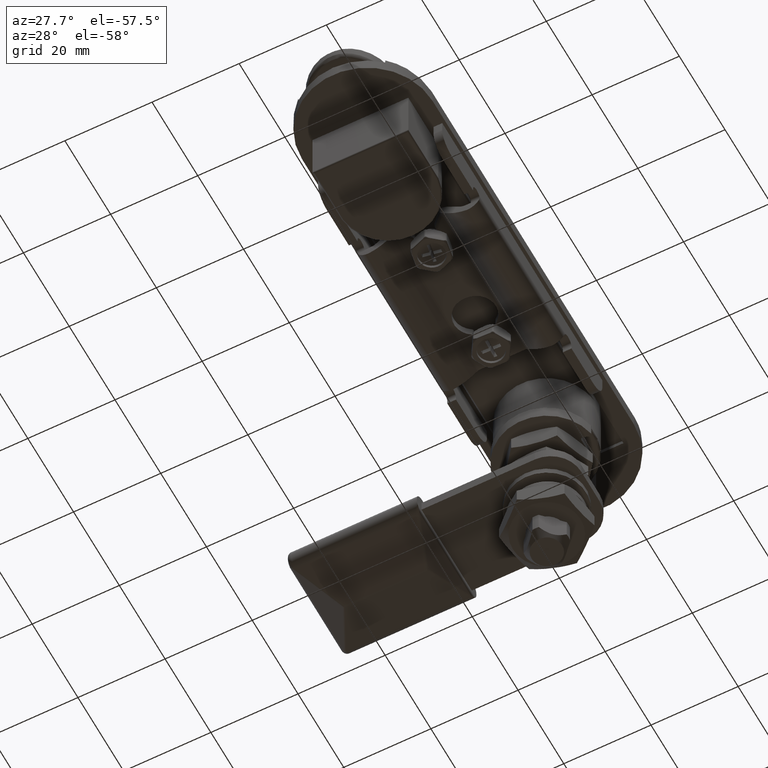
[diagram: clean part render]
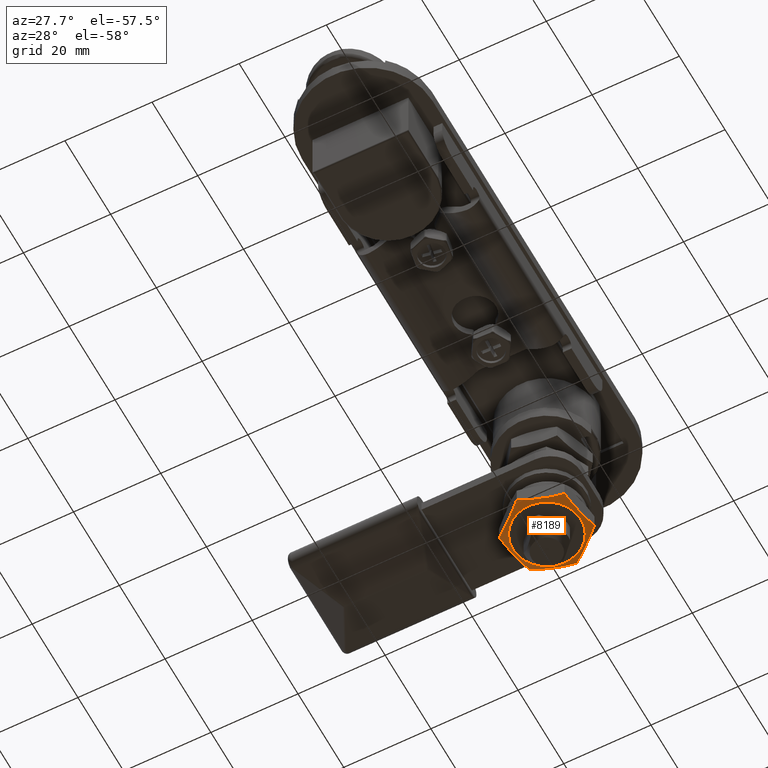
[diagram: same view with one face highlighted and labeled with its STEP entity id]
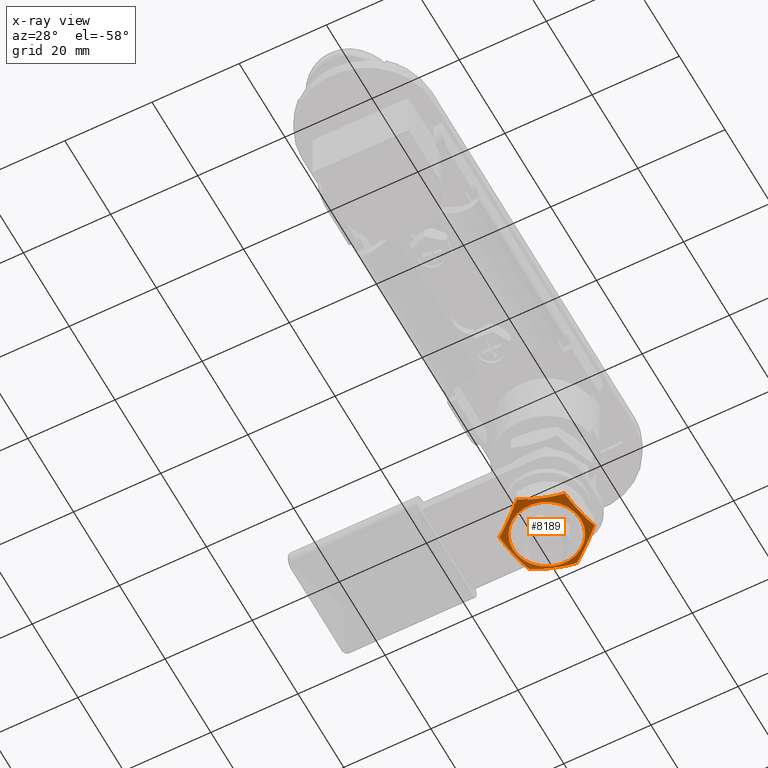
[diagram: x-ray of the same camera — body ghosted, the highlighted face saturated]
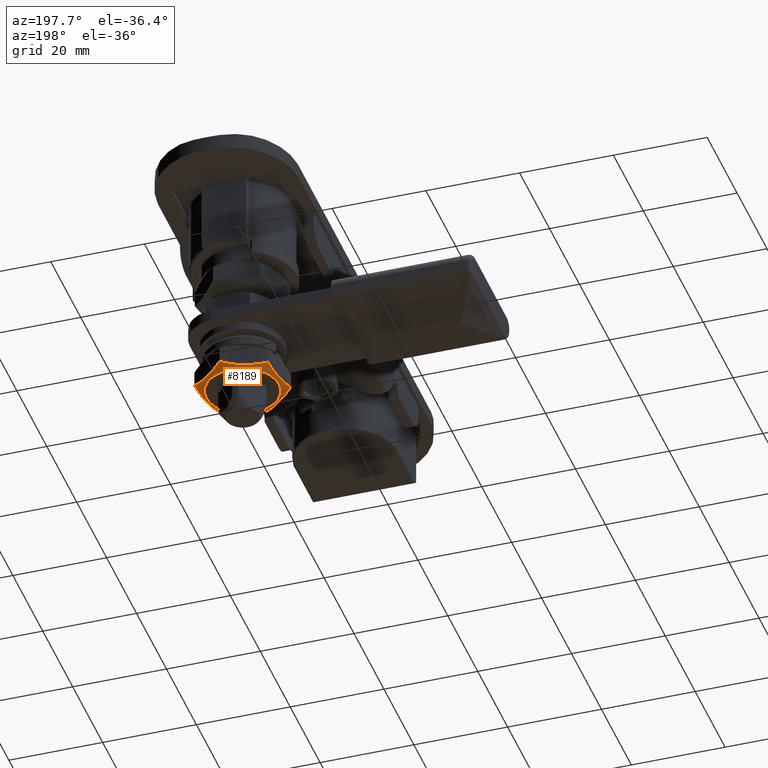
[diagram: same view with one face highlighted and labeled with its STEP entity id]
A machine part, auxiliary view. The second image highlights one B-rep face of the part: STEP entity #8189.
The next image is the same camera in x-ray: the body ghosted, the highlighted face saturated — about 0% of this face is hidden behind the body in this view.
A second angle (auxiliary view) of the same face is appended — the face is thin or edge-on in the first view.
In plain terms, the highlighted conical surface has half-angle 60.206 deg.
Its self-contained STEP definition (entity closure, byte-faithful):
#68=CONICAL_SURFACE('',#9004,8.80000000000001,60.2061946531972);
#153=(
BOUNDED_CURVE()
B_SPLINE_CURVE(2,(#14298,#14299,#14300),.UNSPECIFIED.,.F.,.F.)
B_SPLINE_CURVE_WITH_KNOTS((3,3),(0.,0.991466016069996),.UNSPECIFIED.)
CURVE()
GEOMETRIC_REPRESENTATION_ITEM()
RATIONAL_B_SPLINE_CURVE((1.,1.15470053837925,1.))
REPRESENTATION_ITEM('')
);
#155=(
BOUNDED_CURVE()
B_SPLINE_CURVE(2,(#14309,#14310,#14311),.UNSPECIFIED.,.F.,.F.)
B_SPLINE_CURVE_WITH_KNOTS((3,3),(0.,0.991466016069996),.UNSPECIFIED.)
CURVE()
GEOMETRIC_REPRESENTATION_ITEM()
RATIONAL_B_SPLINE_CURVE((1.,1.15470053837925,1.))
REPRESENTATION_ITEM('')
);
#157=(
BOUNDED_CURVE()
B_SPLINE_CURVE(2,(#14319,#14320,#14321),.UNSPECIFIED.,.F.,.F.)
B_SPLINE_CURVE_WITH_KNOTS((3,3),(0.,0.991466016069997),.UNSPECIFIED.)
CURVE()
GEOMETRIC_REPRESENTATION_ITEM()
RATIONAL_B_SPLINE_CURVE((1.,1.15470053837925,1.))
REPRESENTATION_ITEM('')
);
#159=(
BOUNDED_CURVE()
B_SPLINE_CURVE(2,(#14328,#14329,#14330),.UNSPECIFIED.,.F.,.F.)
B_SPLINE_CURVE_WITH_KNOTS((3,3),(0.,0.991466016069996),.UNSPECIFIED.)
CURVE()
GEOMETRIC_REPRESENTATION_ITEM()
RATIONAL_B_SPLINE_CURVE((1.,1.15470053837925,1.))
REPRESENTATION_ITEM('')
);
#161=(
BOUNDED_CURVE()
B_SPLINE_CURVE(2,(#14338,#14339,#14340),.UNSPECIFIED.,.F.,.F.)
B_SPLINE_CURVE_WITH_KNOTS((3,3),(0.,0.991466016069997),.UNSPECIFIED.)
CURVE()
GEOMETRIC_REPRESENTATION_ITEM()
RATIONAL_B_SPLINE_CURVE((1.,1.15470053837925,1.))
REPRESENTATION_ITEM('')
);
#163=(
BOUNDED_CURVE()
B_SPLINE_CURVE(2,(#14346,#14347,#14348),.UNSPECIFIED.,.F.,.F.)
B_SPLINE_CURVE_WITH_KNOTS((3,3),(0.,0.991466016069996),.UNSPECIFIED.)
CURVE()
GEOMETRIC_REPRESENTATION_ITEM()
RATIONAL_B_SPLINE_CURVE((1.,1.15470053837925,1.))
REPRESENTATION_ITEM('')
);
#1885=FACE_BOUND('',#2819,.T.);
#2268=FACE_OUTER_BOUND('',#2818,.T.);
#2818=EDGE_LOOP('',(#7081,#7082,#7083,#7084,#7085,#7086));
#2819=EDGE_LOOP('',(#7087));
#3251=CIRCLE('',#9005,7.8);
#3937=VERTEX_POINT('',#14295);
#3938=VERTEX_POINT('',#14297);
#3940=VERTEX_POINT('',#14307);
#3942=VERTEX_POINT('',#14317);
#3944=VERTEX_POINT('',#14327);
#3946=VERTEX_POINT('',#14337);
#3947=VERTEX_POINT('',#14350);
#5001=EDGE_CURVE('',#3937,#3938,#153,.T.);
#5005=EDGE_CURVE('',#3940,#3937,#155,.T.);
#5008=EDGE_CURVE('',#3942,#3940,#157,.T.);
#5010=EDGE_CURVE('',#3938,#3944,#159,.T.);
#5013=EDGE_CURVE('',#3944,#3946,#161,.T.);
#5016=EDGE_CURVE('',#3946,#3942,#163,.T.);
#5017=EDGE_CURVE('',#3947,#3947,#3251,.T.);
#7081=ORIENTED_EDGE('',*,*,#5016,.F.);
#7082=ORIENTED_EDGE('',*,*,#5013,.F.);
#7083=ORIENTED_EDGE('',*,*,#5010,.F.);
#7084=ORIENTED_EDGE('',*,*,#5001,.F.);
#7085=ORIENTED_EDGE('',*,*,#5005,.F.);
#7086=ORIENTED_EDGE('',*,*,#5008,.F.);
#7087=ORIENTED_EDGE('',*,*,#5017,.T.);
#8189=ADVANCED_FACE('',(#2268,#1885),#68,.T.);
#9004=AXIS2_PLACEMENT_3D('',#14349,#11063,#11064);
#9005=AXIS2_PLACEMENT_3D('',#14351,#11065,#11066);
#11063=DIRECTION('center_axis',(0.,-1.,0.));
#11064=DIRECTION('ref_axis',(1.,0.,0.));
#11065=DIRECTION('center_axis',(0.,-1.,0.));
#11066=DIRECTION('ref_axis',(1.,0.,0.));
#14295=CARTESIAN_POINT('',(2.88761423330246E-17,1.65487633949666,9.80000000000001));
#14297=CARTESIAN_POINT('',(-8.4870489570875,1.65487633949666,4.9));
#14298=CARTESIAN_POINT('Ctrl Pts',(1.23638473196892E-15,1.65487633949666,
9.80000000000001));
#14299=CARTESIAN_POINT('Ctrl Pts',(-4.24352447854375,3.05765282361325,7.35));
#14300=CARTESIAN_POINT('Ctrl Pts',(-8.48704895708751,1.65487633949666,4.9));
#14307=CARTESIAN_POINT('',(8.4870489570875,1.65487633949666,4.9));
#14309=CARTESIAN_POINT('Ctrl Pts',(8.48704895708751,1.65487633949666,4.9));
#14310=CARTESIAN_POINT('Ctrl Pts',(4.24352447854375,3.05765282361325,7.35000000000001));
#14311=CARTESIAN_POINT('Ctrl Pts',(-3.70915419590677E-15,1.65487633949666,
9.80000000000001));
#14317=CARTESIAN_POINT('',(8.4870489570875,1.65487633949666,-4.9));
#14319=CARTESIAN_POINT('Ctrl Pts',(8.4870489570875,1.65487633949666,-4.90000000000001));
#14320=CARTESIAN_POINT('Ctrl Pts',(8.4870489570875,3.05765282361325,1.4978585575802E-15));
#14321=CARTESIAN_POINT('Ctrl Pts',(8.4870489570875,1.65487633949666,4.90000000000001));
#14327=CARTESIAN_POINT('',(-8.4870489570875,1.65487633949666,-4.9));
#14328=CARTESIAN_POINT('Ctrl Pts',(-8.4870489570875,1.65487633949666,4.90000000000001));
#14329=CARTESIAN_POINT('Ctrl Pts',(-8.4870489570875,3.05765282361325,2.0002864956528E-15));
#14330=CARTESIAN_POINT('Ctrl Pts',(-8.4870489570875,1.65487633949666,-4.9));
#14337=CARTESIAN_POINT('',(3.88578058618805E-15,1.65487633949666,-9.8));
#14338=CARTESIAN_POINT('Ctrl Pts',(-8.48704895708751,1.65487633949666,-4.89999999999999));
#14339=CARTESIAN_POINT('Ctrl Pts',(-4.24352447854376,3.05765282361326,-7.35));
#14340=CARTESIAN_POINT('Ctrl Pts',(5.56373129386016E-15,1.65487633949666,
-9.80000000000001));
#14346=CARTESIAN_POINT('Ctrl Pts',(0.,1.65487633949666,-9.80000000000001));
#14347=CARTESIAN_POINT('Ctrl Pts',(4.24352447854375,3.05765282361325,-7.35));
#14348=CARTESIAN_POINT('Ctrl Pts',(8.48704895708751,1.65487633949666,-4.9));
#14349=CARTESIAN_POINT('Origin',(0.,2.22743816974833,0.));
#14350=CARTESIAN_POINT('',(-7.8,2.8,-9.55224503334936E-16));
#14351=CARTESIAN_POINT('Origin',(0.,2.8,0.));